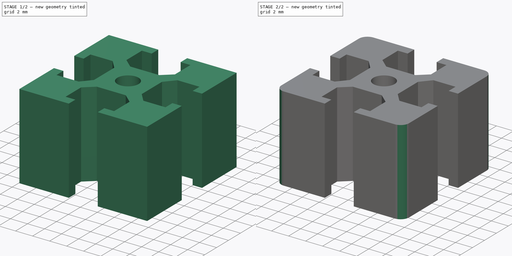
[diagram: build sequence overview — one tinted view per stage of 2, left to right]
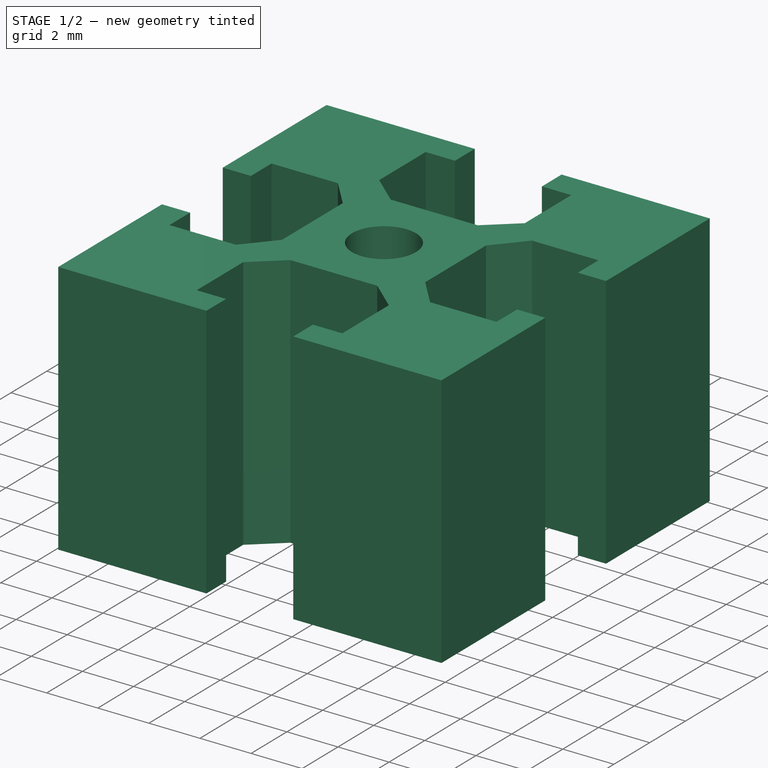
[diagram: stage 1 of 2 — iso view after this stage's code; geometry added in this stage tinted green]
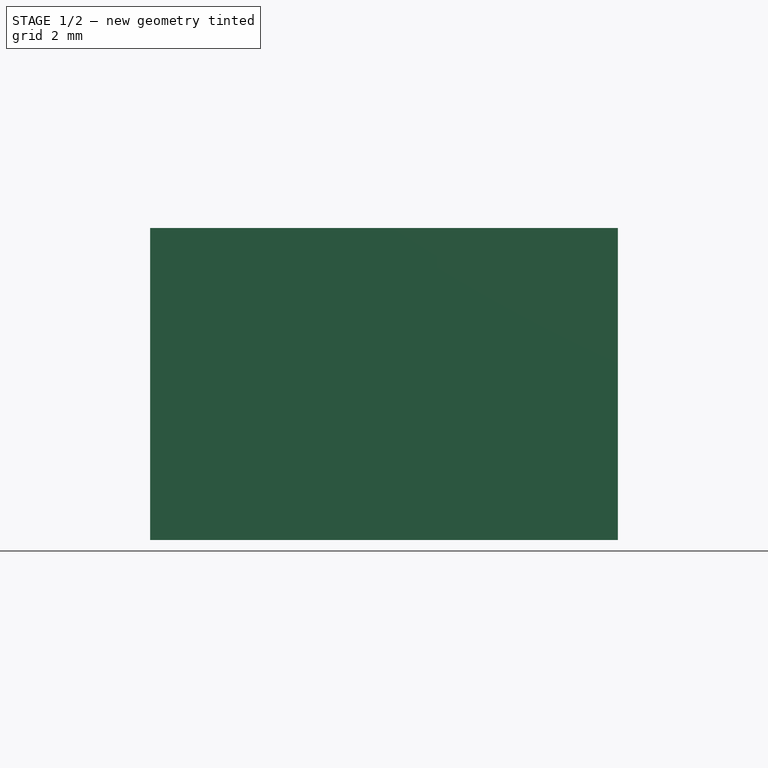
[diagram: stage 1 of 2 — front view after this stage's code; geometry added in this stage tinted green]
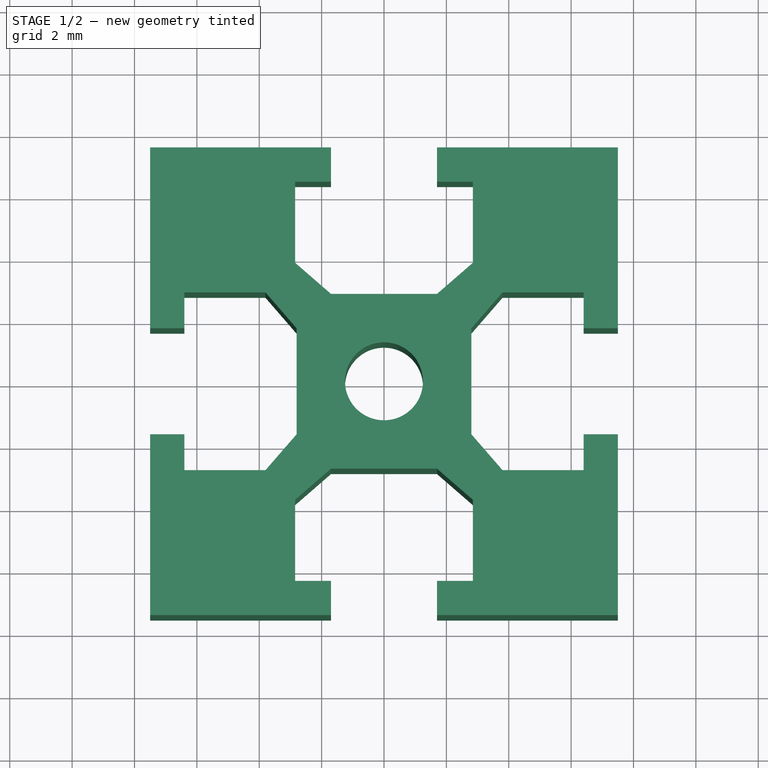
[diagram: stage 1 of 2 — top view after this stage's code; geometry added in this stage tinted green]
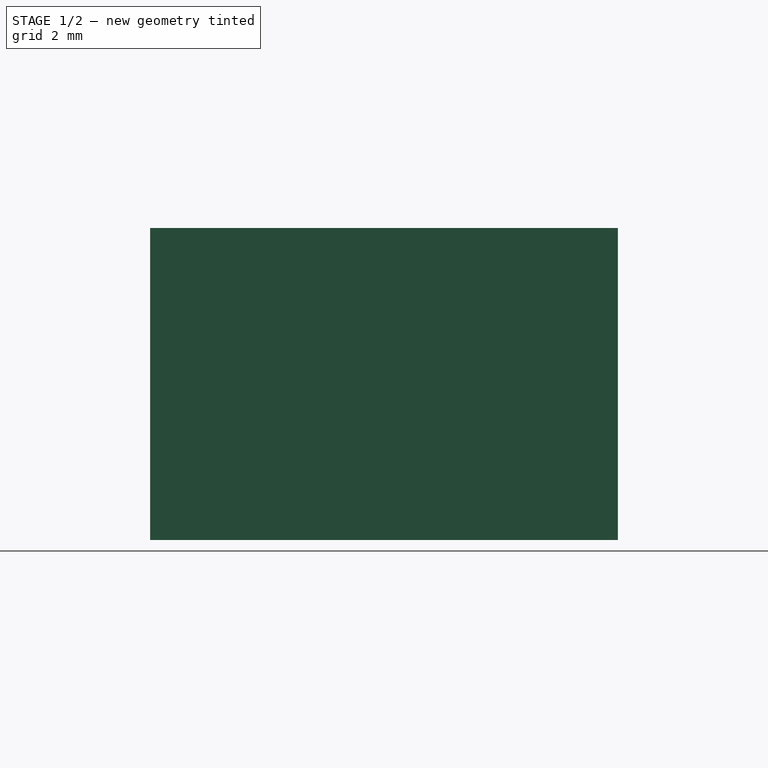
[diagram: stage 1 of 2 — right view after this stage's code; geometry added in this stage tinted green]
FCSTD DOCUMENT
Label: misumi1515
objects: Sketcher::SketchObject×1, PartDesign::Pad×1, PartDesign::Fillet×1
note: 4 computed .brp shape members not serialized (recipe doc carries the construction recipe); baked Part::Feature solids carry a one-line shape summary decoded from their .brp

FEATURE [Sketcher::SketchObject] Sketch
  sketch-geometry (45):
    g0: LineSegment StartX=-7.5 StartY=7.5 StartZ=0 EndX=-1.7 EndY=7.5 EndZ=0
    g1: LineSegment StartX=-1.7 StartY=7.5 StartZ=0 EndX=-1.7 EndY=6.4 EndZ=0
    g2: LineSegment StartX=-1.7 StartY=6.4 StartZ=0 EndX=-2.85 EndY=6.4 EndZ=0
    g3: LineSegment StartX=-2.85 StartY=6.4 StartZ=0 EndX=-2.85 EndY=3.8 EndZ=0
    g4: LineSegment StartX=-2.85 StartY=3.8 StartZ=0 EndX=-1.7 EndY=2.80268 EndZ=0
    g5: LineSegment StartX=-1.7 StartY=2.80268 StartZ=0 EndX=1.7 EndY=2.80268 EndZ=0
    g6: LineSegment StartX=1.7 StartY=2.80268 StartZ=0 EndX=2.85 EndY=3.8 EndZ=0
    g7: LineSegment StartX=2.85 StartY=3.8 StartZ=0 EndX=2.85 EndY=6.4 EndZ=0
    g8: LineSegment StartX=2.85 StartY=6.4 StartZ=0 EndX=1.7 EndY=6.4 EndZ=0
    g9: LineSegment StartX=1.7 StartY=6.4 StartZ=0 EndX=1.7 EndY=7.5 EndZ=0
    g10: LineSegment StartX=1.7 StartY=7.5 StartZ=0 EndX=7.5 EndY=7.5 EndZ=0
    g11: LineSegment StartX=7.5 StartY=7.5 StartZ=0 EndX=7.5 EndY=1.7 EndZ=0
    g12: LineSegment StartX=7.5 StartY=1.7 StartZ=0 EndX=6.4 EndY=1.7 EndZ=0
    g13: LineSegment StartX=6.4 StartY=1.7 StartZ=0 EndX=6.4 EndY=2.85 EndZ=0
    g14: LineSegment StartX=6.4 StartY=2.85 StartZ=0 EndX=3.8 EndY=2.85 EndZ=0
    g15: LineSegment StartX=3.8 StartY=2.85 StartZ=0 EndX=2.80268 EndY=1.7 EndZ=0
    g16: LineSegment StartX=2.80268 StartY=1.7 StartZ=0 EndX=2.80268 EndY=-1.7 EndZ=0
    g17: LineSegment StartX=2.80268 StartY=-1.7 StartZ=0 EndX=3.8 EndY=-2.85 EndZ=0
    g18: LineSegment StartX=3.8 StartY=-2.85 StartZ=0 EndX=6.4 EndY=-2.85 EndZ=0
    g19: LineSegment StartX=6.4 StartY=-2.85 StartZ=0 EndX=6.4 EndY=-1.7 EndZ=0
    g20: LineSegment StartX=6.4 StartY=-1.7 StartZ=0 EndX=7.5 EndY=-1.7 EndZ=0
    g21: LineSegment StartX=7.5 StartY=-1.7 StartZ=0 EndX=7.5 EndY=-7.5 EndZ=0
    g22: LineSegment StartX=7.5 StartY=-7.5 StartZ=0 EndX=1.7 EndY=-7.5 EndZ=0
    g23: LineSegment StartX=1.7 StartY=-7.5 StartZ=0 EndX=1.7 EndY=-6.4 EndZ=0
    g24: LineSegment StartX=1.7 StartY=-6.4 StartZ=0 EndX=2.85 EndY=-6.4 EndZ=0
    g25: LineSegment StartX=2.85 StartY=-6.4 StartZ=0 EndX=2.85 EndY=-3.8 EndZ=0
    g26: LineSegment StartX=2.85 StartY=-3.8 StartZ=0 EndX=1.7 EndY=-2.80268 EndZ=0
    g27: LineSegment StartX=1.7 StartY=-2.80268 StartZ=0 EndX=-1.7 EndY=-2.80268 EndZ=0
    g28: LineSegment StartX=-1.7 StartY=-2.80268 StartZ=0 EndX=-2.85 EndY=-3.8 EndZ=0
    g29: LineSegment StartX=-2.85 StartY=-3.8 StartZ=0 EndX=-2.85 EndY=-6.4 EndZ=0
    g30: LineSegment StartX=-2.85 StartY=-6.4 StartZ=0 EndX=-1.7 EndY=-6.4 EndZ=0
    g31: LineSegment StartX=-1.7 StartY=-6.4 StartZ=0 EndX=-1.7 EndY=-7.5 EndZ=0
    g32: LineSegment StartX=-1.7 StartY=-7.5 StartZ=0 EndX=-7.5 EndY=-7.5 EndZ=0
    g33: LineSegment StartX=-7.5 StartY=-7.5 StartZ=0 EndX=-7.5 EndY=-1.7 EndZ=0
    g34: LineSegment StartX=-7.5 StartY=-1.7 StartZ=0 EndX=-6.4 EndY=-1.7 EndZ=0
    g35: LineSegment StartX=-6.4 StartY=-1.7 StartZ=0 EndX=-6.4 EndY=-2.85 EndZ=0
    g36: LineSegment StartX=-6.4 StartY=-2.85 StartZ=0 EndX=-3.8 EndY=-2.85 EndZ=0
    g37: LineSegment StartX=-3.8 StartY=-2.85 StartZ=0 EndX=-2.80268 EndY=-1.7 EndZ=0
    g38: LineSegment StartX=-2.80268 StartY=-1.7 StartZ=0 EndX=-2.80268 EndY=1.7 EndZ=0
    g39: LineSegment StartX=-2.80268 StartY=1.7 StartZ=0 EndX=-3.8 EndY=2.85 EndZ=0
    g40: LineSegment StartX=-3.8 StartY=2.85 StartZ=0 EndX=-6.4 EndY=2.85 EndZ=0
    g41: LineSegment StartX=-6.4 StartY=2.85 StartZ=0 EndX=-6.4 EndY=1.7 EndZ=0
    g42: LineSegment StartX=-6.4 StartY=1.7 StartZ=0 EndX=-7.5 EndY=1.7 EndZ=0
    g43: LineSegment StartX=-7.5 StartY=1.7 StartZ=0 EndX=-7.5 EndY=7.5 EndZ=0
    g44: Circle CenterX=0 CenterY=0 CenterZ=0 NormalX=0 NormalY=0 NormalZ=1 Radius=1.25
  constraints (138):
    c: Horizontal(g0)
    c: Coincident(g0,g1)
    c: Vertical(g1)
    c: Coincident(g1,g2)
    c: Horizontal(g2)
    c: Coincident(g2,g3)
    c: Vertical(g3)
    c: Coincident(g3,g4)
    c: Coincident(g4,g5)
    c: Coincident(g5,g6)
    c: Coincident(g6,g7)
    c: Vertical(g7)
    c: Coincident(g7,g8)
    c: Coincident(g8,g9)
    c: Coincident(g9,g10)
    c: Horizontal(g10)
    c: Coincident(g10,g11)
    c: Vertical(g11)
    c: Coincident(g11,g12)
    c: Horizontal(g12)
    c: Coincident(g12,g13)
    c: Coincident(g13,g14)
    c: Horizontal(g14)
    c: Coincident(g14,g15)
    c: Coincident(g15,g16)
    c: Vertical(g16)
    c: Coincident(g16,g17)
    c: Coincident(g17,g18)
    c: Horizontal(g18)
    c: Coincident(g18,g19)
    c: Vertical(g19)
    c: Coincident(g19,g20)
    c: Horizontal(g20)
    c: Coincident(g20,g21)
    c: Vertical(g21)
    c: Coincident(g21,g22)
    c: Horizontal(g22)
    c: Coincident(g22,g23)
    c: Vertical(g23)
    c: Coincident(g23,g24)
    c: Coincident(g24,g25)
    c: Vertical(g25)
    c: Coincident(g25,g26)
    c: Coincident(g26,g27)
    c: Coincident(g27,g28)
    c: Coincident(g28,g29)
    c: Vertical(g29)
    c: Coincident(g29,g30)
    c: Coincident(g30,g31)
    c: Coincident(g31,g32)
    c: Coincident(g32,g33)
    c: Vertical(g33)
    c: Coincident(g33,g34)
    c: Coincident(g34,g35)
    c: Vertical(g35)
    c: Coincident(g35,g36)
    c: Horizontal(g36)
    c: Coincident(g36,g37)
    c: Coincident(g37,g38)
    c: Coincident(g38,g39)
    c: Coincident(g39,g40)
    c: Coincident(g40,g41)
    c: Vertical(g41)
    c: Coincident(g41,g42)
    c: Coincident(g42,g43)
    c: Coincident(g43,g0)
    c: Vertical(g43)
    c: Horizontal(g40)
    c: Horizontal(g32)
    c: Horizontal(g24)
    c: Horizontal(g34)
    c: Horizontal(g42)
    c: Horizontal(g8)
    c: Vertical(g31)
    c: Vertical(g9)
    c: Vertical(g13)
    c: Symmetric(g0,g10,g-2)
    c: Symmetric(g21,g32,g-2)
    c: Symmetric(g21,g10,g-1)
    c: Symmetric(g38,g37,g-1)
    c: Symmetric(g4,g5,g-2)
    c: Symmetric(g0,g9,g-2)
    c: Symmetric(g2,g7,g-2)
    c: Symmetric(g27,g26,g-2)
    c: Symmetric(g28,g25,g-2)
    c: Symmetric(g36,g39,g-1)
    c: Symmetric(g14,g17,g-1)
    c: Symmetric(g16,g15,g-1)
    c: Symmetric(g20,g11,g-1)
    c: Symmetric(g31,g22,g-2)
    c: Equal(g34,g42)
    c: Equal(g42,g12)
    c: Equal(g12,g20)
    c: Equal(g20,g1)
    c: Equal(g1,g9)
    c: Equal(g9,g31)
    c: Equal(g31,g23)
    c: DistanceX(g42) = -1.1
    c: Equal(g3,g7)
    c: Equal(g7,g14)
    c: Equal(g14,g18)
    c: Equal(g18,g25)
    c: Equal(g25,g29)
    c: Equal(g29,g36)
    c: Equal(g36,g40)
    c: DistanceX(g40) = -2.6
    c: Equal(g38,g5)
    c: Equal(g5,g16)
    c: Equal(g16,g27)
    c: DistanceY(g38) = 3.4
    c: DistanceX(g0,g10) = 15
    c: DistanceY(g0,g32) = -15
    c: DistanceY(g40,g35) = -5.7
    c: DistanceY(g42,g33) = -3.4
    c: Equal(g33,g32)
    c: Equal(g32,g22)
    c: Equal(g22,g21)
    c: Equal(g21,g11)
    c: Equal(g11,g10)
    c: Equal(g10,g0)
    c: Equal(g0,g43)
    c: DistanceX(g36,g37) = 0.997317
    c: Equal(g37,g39)
    c: Equal(g39,g4)
    c: Equal(g4,g6)
    c: Equal(g6,g15)
    c: Equal(g15,g17)
    c: Equal(g17,g26)
    c: Equal(g26,g28)
    c: Equal(g41,g2)
    c: Equal(g2,g8)
    c: Equal(g8,g13)
    c: Equal(g13,g19)
    c: Equal(g19,g24)
    c: Equal(g24,g30)
    c: Equal(g30,g35)
    c: Radius(g44) = 1.25
    c: Coincident(g44,g-1)
FEATURE [PartDesign::Pad] Pad
  Length = 10
  Length2 = 100
  Sketch = -> Sketch
  Type = 0
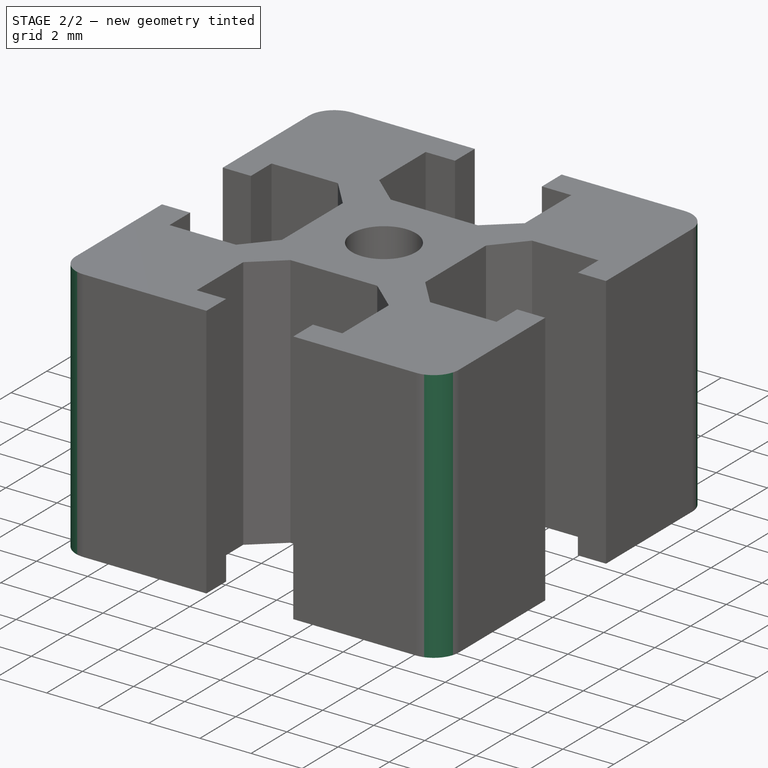
[diagram: stage 2 of 2 — iso view after this stage's code; geometry added in this stage tinted green]
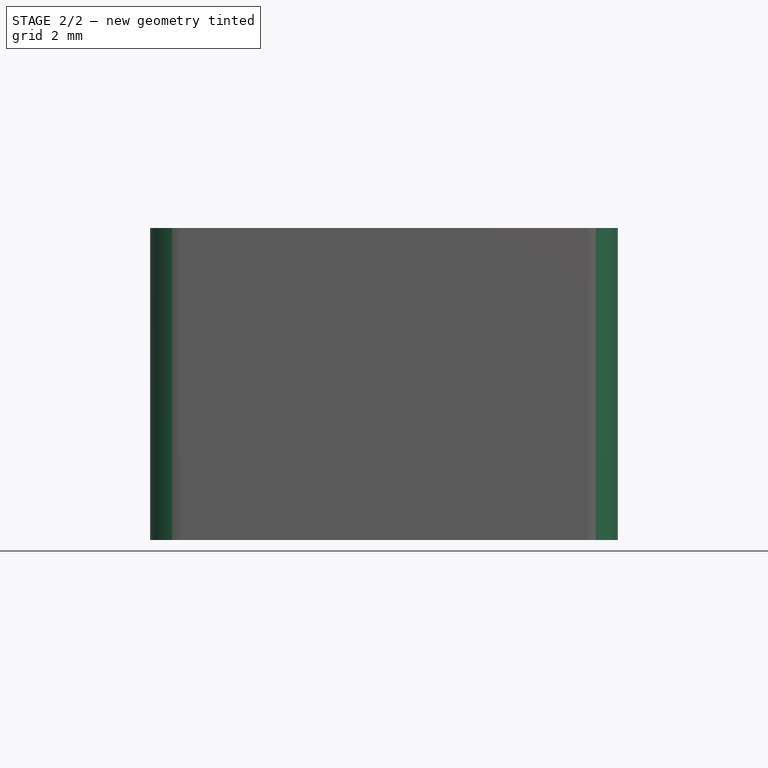
[diagram: stage 2 of 2 — front view after this stage's code; geometry added in this stage tinted green]
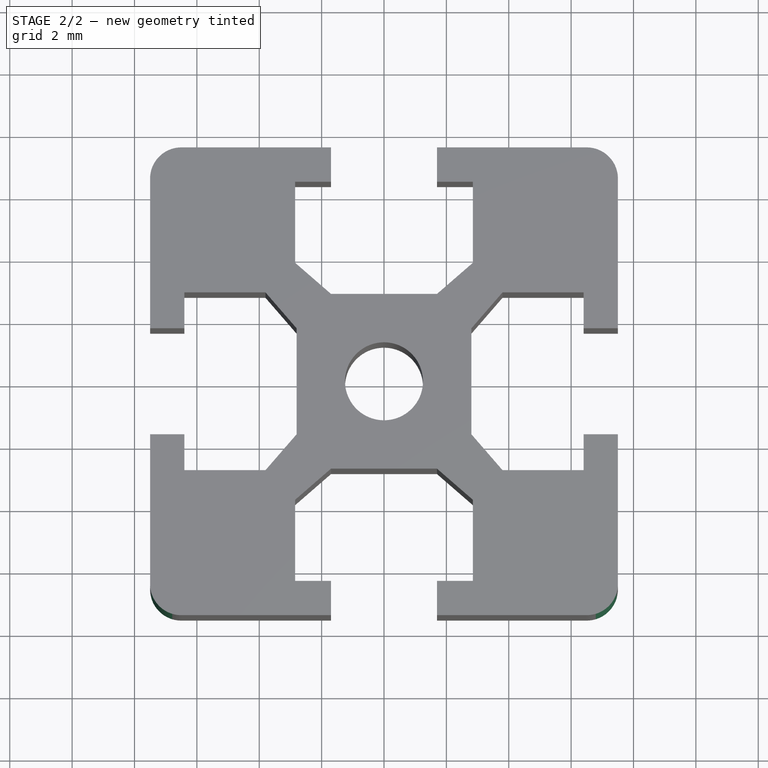
[diagram: stage 2 of 2 — top view after this stage's code; geometry added in this stage tinted green]
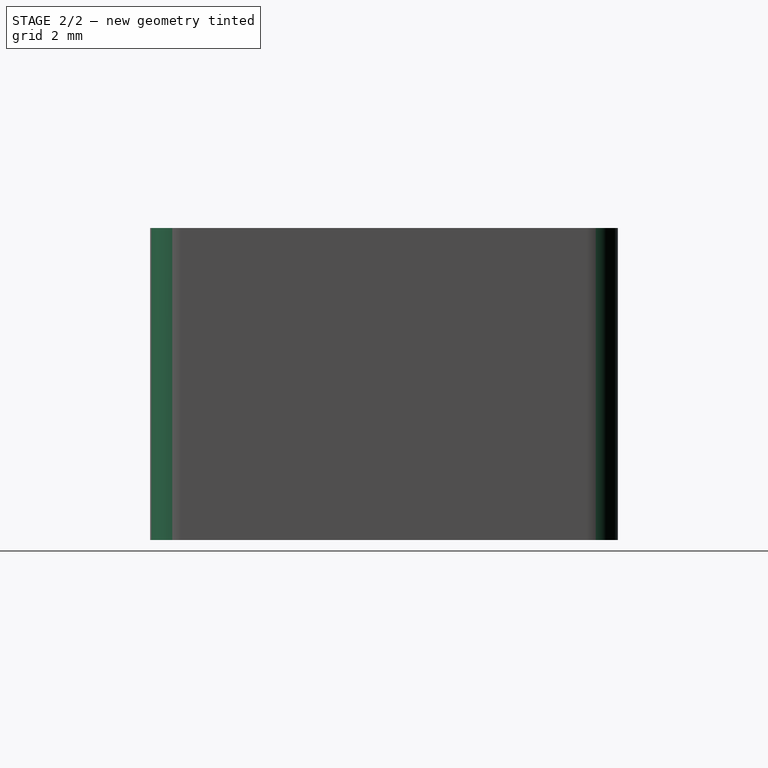
[diagram: stage 2 of 2 — right view after this stage's code; geometry added in this stage tinted green]
FEATURE [PartDesign::Fillet] Fillet
  Base = -> Pad [Edge98,Edge65,Edge32,Edge1]
  Radius = 1
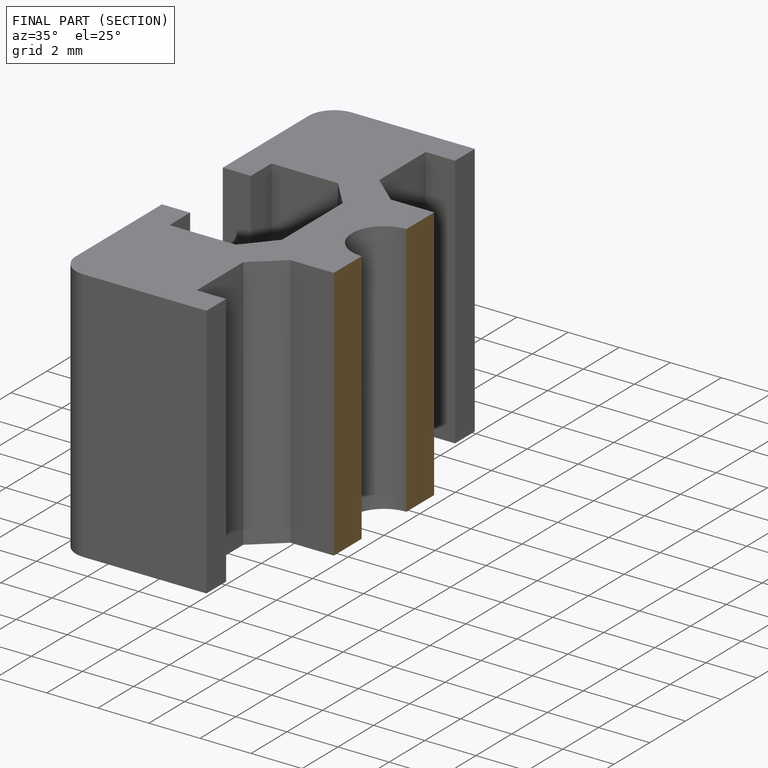
[diagram: finished part — half-section view (interior)]
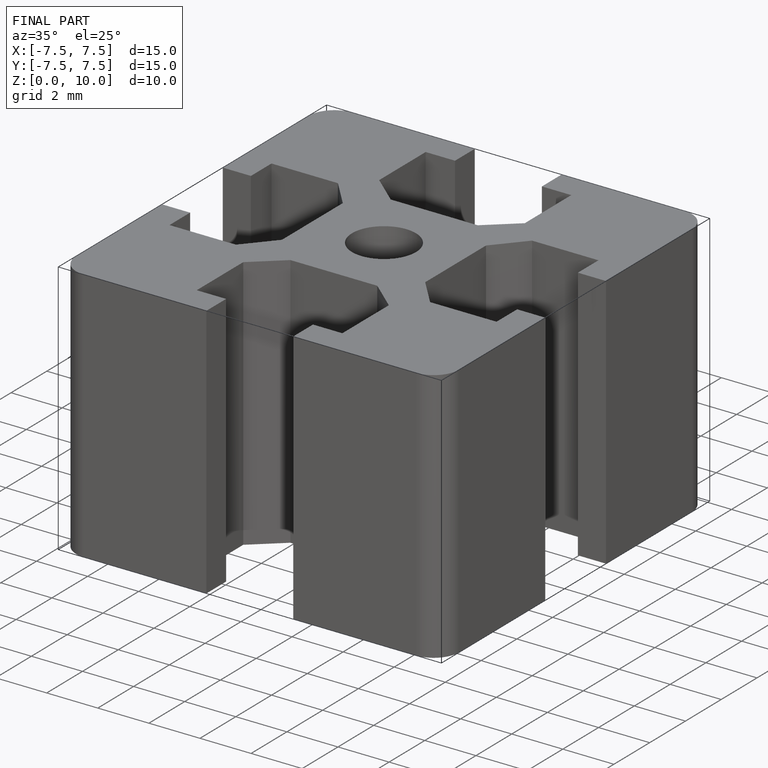
[diagram: finished part — iso view with bounding-box wireframe]
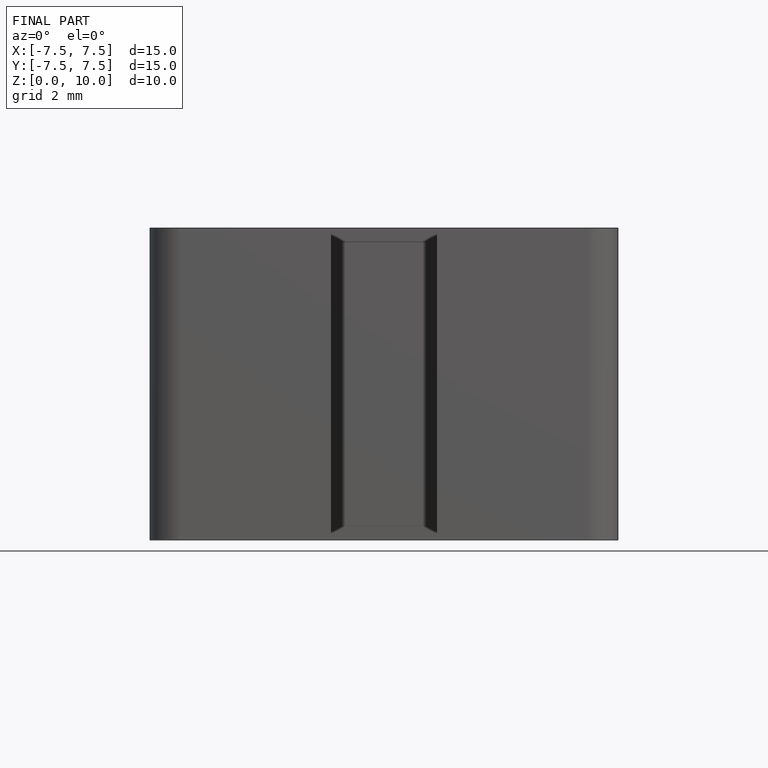
[diagram: finished part — front view with bounding-box wireframe]
